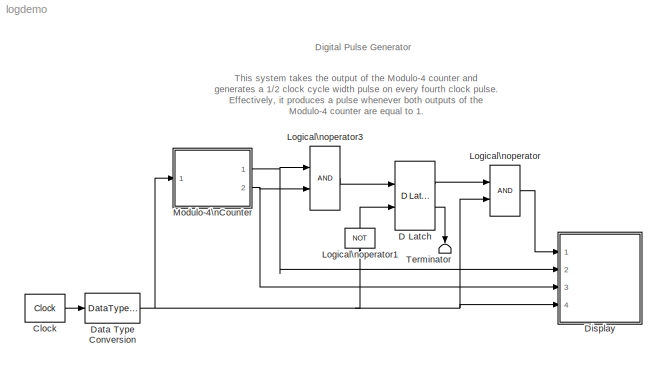
MODEL logdemo
KIND model
BLOCK [Reference] Clock  REF=simulink_extras/Flip Flops/Clock
  MaskParam1 = 1
  Ports = [0, 1]
  ShowPortLabels = on
  SourceBlock = simulink_extras/Flip Flops/Clock
  SourceType = Digital clock
BLOCK [Reference] D Latch  REF=simulink_extras/Flip Flops/D Latch
  Ports = [2, 2]
  ShowPortLabels = on
  SourceBlock = simulink_extras/Flip Flops/D Latch
  SourceType = DLatch
BLOCK [DataTypeConversion] Data Type Conversion
  OutDataTypeMode = boolean
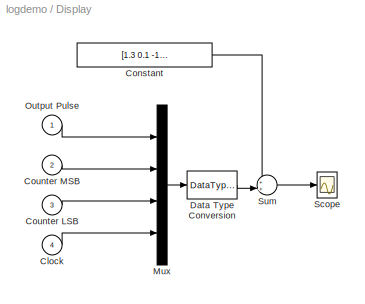
BLOCK [SubSystem] Display
  MinAlgLoopOccurrences = off
  Ports = [4]
  PropExecContextAcrossSSBoundary = on
  RTWSystemCode = Auto
  TreatAsAtomicUnit = off
BLOCK [Inport] Display/Clock
  IconDisplay = Port number
  LatchInput = off
  Port = 4
BLOCK [Constant] Display/Constant
  Value = [1.3 0.1 -1.2 -2.4]
BLOCK [Inport] Display/Counter LSB
  IconDisplay = Port number
  LatchInput = off
  Port = 3
BLOCK [Inport] Display/Counter MSB
  IconDisplay = Port number
  LatchInput = off
  Port = 2
BLOCK [DataTypeConversion] Display/Data Type Conversion
  OutDataTypeMode = double
BLOCK [Mux] Display/Mux
  DisplayOption = bar
  Ports = [4, 1]
BLOCK [Inport] Display/Output Pulse
  IconDisplay = Port number
  LatchInput = off
  Port = 1
BLOCK [Scope] Display/Scope
  DataFormat = Array
  NumInputPorts = 1
  Ports = [1]
  TickLabels = on
  TimeRange = 100
  YMax = 3
  YMin = -3
BLOCK [Sum] Display/Sum
  IconShape = round
  Inputs = ++|
  Ports = [2, 1]
BLOCK [Logic] Logical\noperator
  Ports = [2, 1]
BLOCK [Logic] Logical\noperator1
  Inputs = 1
  Operator = NOT
  Ports = [1, 1]
BLOCK [Logic] Logical\noperator3
  Ports = [2, 1]
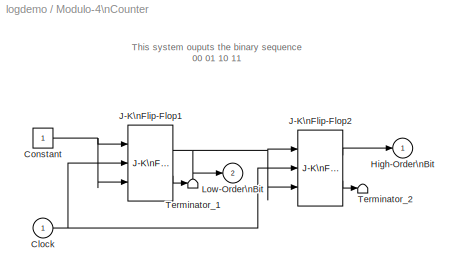
BLOCK [SubSystem] Modulo-4\nCounter
  MinAlgLoopOccurrences = off
  Ports = [1, 2]
  PropExecContextAcrossSSBoundary = on
  RTWSystemCode = Auto
  TreatAsAtomicUnit = off
BLOCK [Inport] Modulo-4\nCounter/Clock
  IconDisplay = Port number
  LatchInput = off
  Port = 1
BLOCK [Constant] Modulo-4\nCounter/Constant
  OutDataTypeMode = boolean
BLOCK [Outport] Modulo-4\nCounter/High-Order\nBit
  IconDisplay = Port number
  InitialOutput = 0
BLOCK [Reference] Modulo-4\nCounter/J-K\nFlip-Flop1  REF=simulink_extras/Flip Flops/J-K\nFlip-Flop
  Ports = [3, 2]
  SourceBlock = simulink_extras/Flip Flops/J-K\nFlip-Flop
  SourceType = JKFlipFlop
  initial_condition = 0
BLOCK [Reference] Modulo-4\nCounter/J-K\nFlip-Flop2  REF=simulink_extras/Flip Flops/J-K\nFlip-Flop
  Ports = [3, 2]
  SourceBlock = simulink_extras/Flip Flops/J-K\nFlip-Flop
  SourceType = JKFlipFlop
  initial_condition = 0
BLOCK [Outport] Modulo-4\nCounter/Low-Order\nBit
  IconDisplay = Port number
  InitialOutput = 0
  Port = 2
BLOCK [Terminator] Modulo-4\nCounter/Terminator_1
BLOCK [Terminator] Modulo-4\nCounter/Terminator_2
BLOCK [Terminator] Terminator
ANNOTATION (root): Digital Pulse Generator
ANNOTATION (root): This system takes the output of the Modulo-4 counter and\ngenerates a 1/2 clock cycle width pulse on every fourth clock pulse.\nEffectively, it produces a pulse whenever both outputs of the \nModulo-4 counter are equal to 1.
ANNOTATION Modulo-4\nCounter: This system ouputs the binary sequence\n00 01 10 11
LINE Clock:1 -> Data Type Conversion:1
LINE D Latch:1 -> Logical\noperator:1
LINE D Latch:2 -> Terminator:1
NET Data Type Conversion:1 -> Display:4, Logical\noperator1:1, Logical\noperator:2, Modulo-4\nCounter:1
LINE Display/Clock:1 -> Display/Mux:4
LINE Display/Constant:1 -> Display/Sum:1
LINE Display/Counter LSB:1 -> Display/Mux:3
LINE Display/Counter MSB:1 -> Display/Mux:2
LINE Display/Data Type Conversion:1 -> Display/Sum:2
LINE Display/Mux:1 -> Display/Data Type Conversion:1
LINE Display/Output Pulse:1 -> Display/Mux:1
LINE Display/Sum:1 -> Display/Scope:1
LINE Logical\noperator1:1 -> D Latch:2
LINE Logical\noperator3:1 -> D Latch:1
LINE Logical\noperator:1 -> Display:1
NET Modulo-4\nCounter/Clock:1 -> Modulo-4\nCounter/J-K\nFlip-Flop1:2, Modulo-4\nCounter/J-K\nFlip-Flop2:2
NET Modulo-4\nCounter/Constant:1 -> Modulo-4\nCounter/J-K\nFlip-Flop1:1, Modulo-4\nCounter/J-K\nFlip-Flop1:3
NET Modulo-4\nCounter/J-K\nFlip-Flop1:1 -> Modulo-4\nCounter/J-K\nFlip-Flop2:1, Modulo-4\nCounter/J-K\nFlip-Flop2:3, Modulo-4\nCounter/Low-Order\nBit:1
LINE Modulo-4\nCounter/J-K\nFlip-Flop1:2 -> Modulo-4\nCounter/Terminator_1:1
LINE Modulo-4\nCounter/J-K\nFlip-Flop2:1 -> Modulo-4\nCounter/High-Order\nBit:1
LINE Modulo-4\nCounter/J-K\nFlip-Flop2:2 -> Modulo-4\nCounter/Terminator_2:1
NET Modulo-4\nCounter:1 -> Display:2, Logical\noperator3:1
NET Modulo-4\nCounter:2 -> Display:3, Logical\noperator3:2
note: NET lines group one-source signal fan-out (src -> all destinations, sorted); 1:1 wires keep LINE
